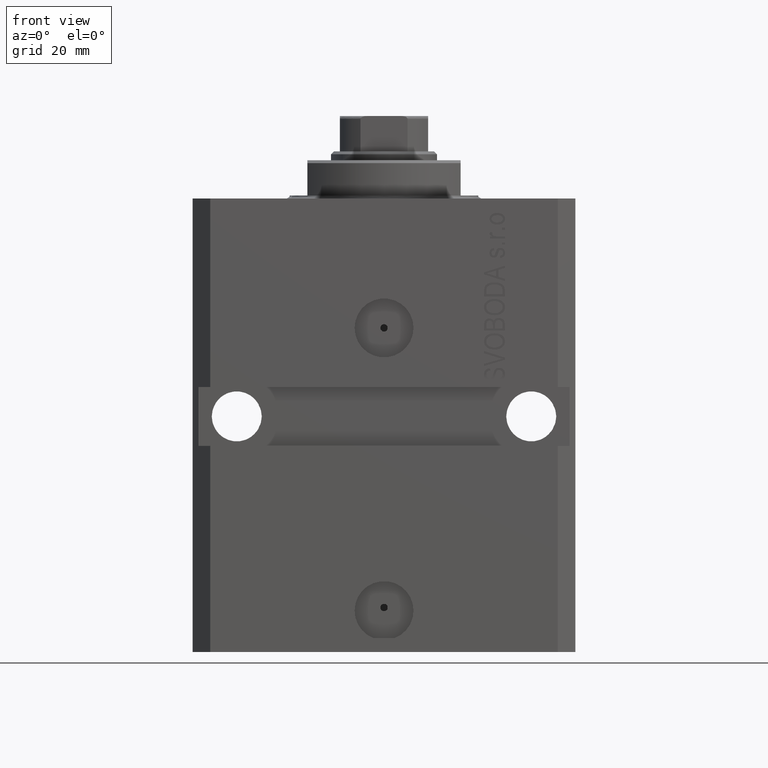
[diagram: clean part render]
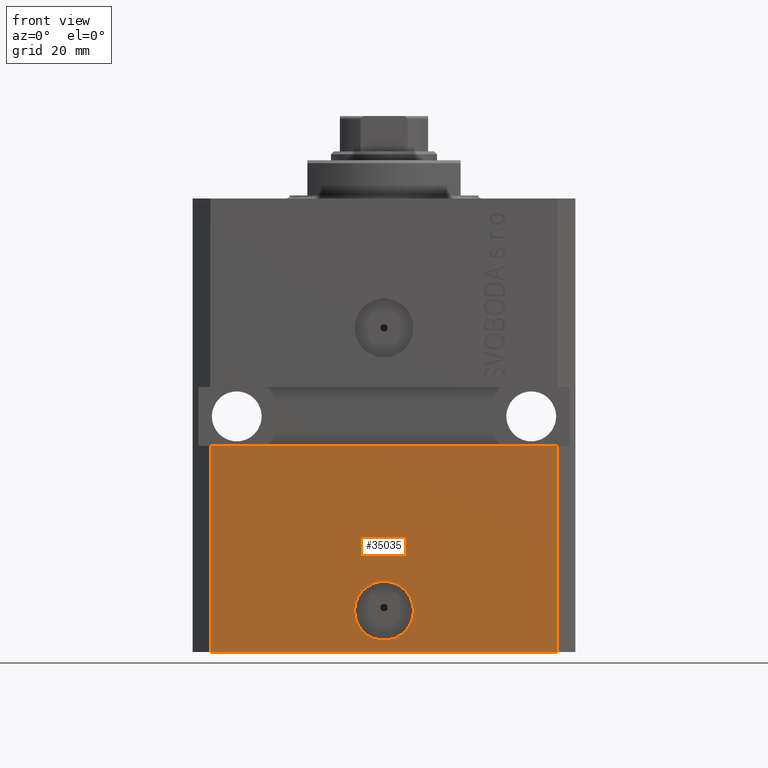
[diagram: same view with one face highlighted and labeled with its STEP entity id]
A machine part, front view. The second image highlights one B-rep face of the part: STEP entity #35035.
In plain terms, the highlighted planar face has unit normal (0, -1, 0).
Its self-contained STEP definition (entity closure, byte-faithful):
#1755 = VERTEX_POINT ( 'NONE', #32760 ) ;
#2811 = CARTESIAN_POINT ( 'NONE',  ( -29.49999999999650413, -22.49999999999949907, -77.00000000000000000 ) ) ;
#2829 = LINE ( 'NONE', #39796, #38038 ) ;
#4916 = AXIS2_PLACEMENT_3D ( 'NONE', #2811, #45520, #20266 ) ;
#5214 = ORIENTED_EDGE ( 'NONE', *, *, #17373, .F. ) ;
#5638 = CIRCLE ( 'NONE', #41429, 5.000000000000005329 ) ;
#5957 = CARTESIAN_POINT ( 'NONE',  ( -29.49999999999650413, -22.49999999999949907, -77.00000000000000000 ) ) ;
#7790 = ORIENTED_EDGE ( 'NONE', *, *, #45425, .F. ) ;
#7854 = VERTEX_POINT ( 'NONE', #34528 ) ;
#8588 = DIRECTION ( 'NONE',  ( 1.176083712526788232E-16, -1.000000000000000000, 0.000000000000000000 ) ) ;
#9477 = EDGE_LOOP ( 'NONE', ( #5214, #44372 ) ) ;
#14051 = DIRECTION ( 'NONE',  ( 1.000000000000000000, 1.067522139062765303E-16, 1.067522139062765303E-16 ) ) ;
#14361 = CARTESIAN_POINT ( 'NONE',  ( -29.49999999999650413, -22.49999999999949907, -77.00000000000000000 ) ) ;
#16120 = DIRECTION ( 'NONE',  ( 1.000000000000000000, 0.000000000000000000, 0.000000000000000000 ) ) ;
#16358 = CARTESIAN_POINT ( 'NONE',  ( 2.646188353185214061E-15, -22.49999999999949551, -69.99999999999998579 ) ) ;
#17373 = EDGE_CURVE ( 'NONE', #43829, #46073, #34472, .T. ) ;
#17644 = DIRECTION ( 'NONE',  ( 0.000000000000000000, 0.000000000000000000, 1.000000000000000000 ) ) ;
#20266 = DIRECTION ( 'NONE',  ( 1.000000000000000000, 1.176083712526788232E-16, 0.000000000000000000 ) ) ;
#20525 = LINE ( 'NONE', #5957, #41470 ) ;
#20726 = ORIENTED_EDGE ( 'NONE', *, *, #37006, .T. ) ;
#21578 = EDGE_CURVE ( 'NONE', #46073, #43829, #5638, .T. ) ;
#22158 = ORIENTED_EDGE ( 'NONE', *, *, #31122, .F. ) ;
#22916 = CARTESIAN_POINT ( 'NONE',  ( 2.646188353185214061E-15, -22.49999999999949551, -69.99999999999998579 ) ) ;
#24075 = PLANE ( 'NONE',  #4916 ) ;
#24306 = FACE_BOUND ( 'NONE', #9477, .T. ) ;
#24437 = CARTESIAN_POINT ( 'NONE',  ( 5.000000000000007994, -22.49999999999949551, -69.99999999999998579 ) ) ;
#24851 = DIRECTION ( 'NONE',  ( 0.000000000000000000, 0.000000000000000000, 1.000000000000000000 ) ) ;
#24944 = EDGE_LOOP ( 'NONE', ( #7790, #22158, #46678, #20726 ) ) ;
#28224 = CARTESIAN_POINT ( 'NONE',  ( -29.49999999999650413, -22.49999999999949907, -41.99999999999999289 ) ) ;
#28380 = AXIS2_PLACEMENT_3D ( 'NONE', #16358, #41877, #16120 ) ;
#29269 = VECTOR ( 'NONE', #40111, 1000.000000000000000 ) ;
#30868 = CARTESIAN_POINT ( 'NONE',  ( -5.000000000000002665, -22.49999999999949551, -69.99999999999998579 ) ) ;
#31122 = EDGE_CURVE ( 'NONE', #1755, #33540, #20525, .T. ) ;
#32269 = LINE ( 'NONE', #14361, #29269 ) ;
#32760 = CARTESIAN_POINT ( 'NONE',  ( -29.49999999999650413, -22.49999999999949907, -77.00000000000000000 ) ) ;
#33540 = VERTEX_POINT ( 'NONE', #28224 ) ;
#33574 = EDGE_CURVE ( 'NONE', #1755, #7854, #32269, .T. ) ;
#34472 = CIRCLE ( 'NONE', #28380, 5.000000000000005329 ) ;
#34528 = CARTESIAN_POINT ( 'NONE',  ( 29.49999999999650413, -22.49999999999949196, -77.00000000000000000 ) ) ;
#34731 = VECTOR ( 'NONE', #24851, 1000.000000000000000 ) ;
#35035 = ADVANCED_FACE ( 'NONE', ( #24306, #42186 ), #24075, .T. ) ;
#36167 = VERTEX_POINT ( 'NONE', #38675 ) ;
#36895 = DIRECTION ( 'NONE',  ( 1.000000000000000000, 0.000000000000000000, 0.000000000000000000 ) ) ;
#37006 = EDGE_CURVE ( 'NONE', #7854, #36167, #43661, .T. ) ;
#38038 = VECTOR ( 'NONE', #14051, 1000.000000000000000 ) ;
#38675 = CARTESIAN_POINT ( 'NONE',  ( 29.49999999999650058, -22.49999999999949196, -41.99999999999998579 ) ) ;
#39385 = CARTESIAN_POINT ( 'NONE',  ( 29.49999999999650413, -22.49999999999949196, -77.00000000000000000 ) ) ;
#39796 = CARTESIAN_POINT ( 'NONE',  ( -32.49999999999650413, -22.49999999999949907, -41.99999999999999289 ) ) ;
#40111 = DIRECTION ( 'NONE',  ( 1.000000000000000000, 1.176083712526788232E-16, 0.000000000000000000 ) ) ;
#41429 = AXIS2_PLACEMENT_3D ( 'NONE', #22916, #8588, #36895 ) ;
#41470 = VECTOR ( 'NONE', #17644, 1000.000000000000000 ) ;
#41877 = DIRECTION ( 'NONE',  ( 1.176083712526788232E-16, -1.000000000000000000, 0.000000000000000000 ) ) ;
#42186 = FACE_OUTER_BOUND ( 'NONE', #24944, .T. ) ;
#43661 = LINE ( 'NONE', #39385, #34731 ) ;
#43829 = VERTEX_POINT ( 'NONE', #24437 ) ;
#44372 = ORIENTED_EDGE ( 'NONE', *, *, #21578, .F. ) ;
#45425 = EDGE_CURVE ( 'NONE', #33540, #36167, #2829, .T. ) ;
#45520 = DIRECTION ( 'NONE',  ( 1.176083712526788232E-16, -1.000000000000000000, 0.000000000000000000 ) ) ;
#46073 = VERTEX_POINT ( 'NONE', #30868 ) ;
#46678 = ORIENTED_EDGE ( 'NONE', *, *, #33574, .T. ) ;